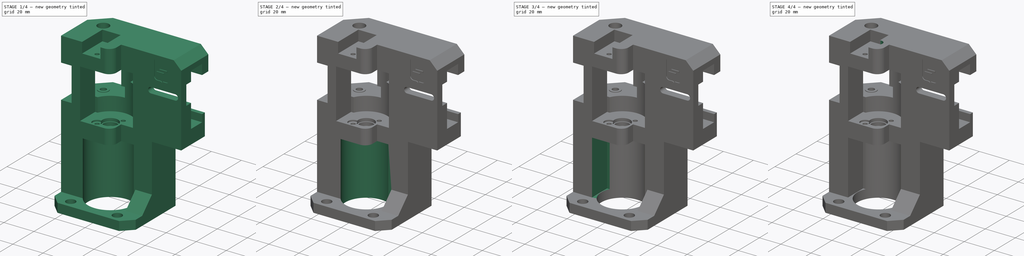
[diagram: build sequence overview — one tinted view per stage of 4, left to right]
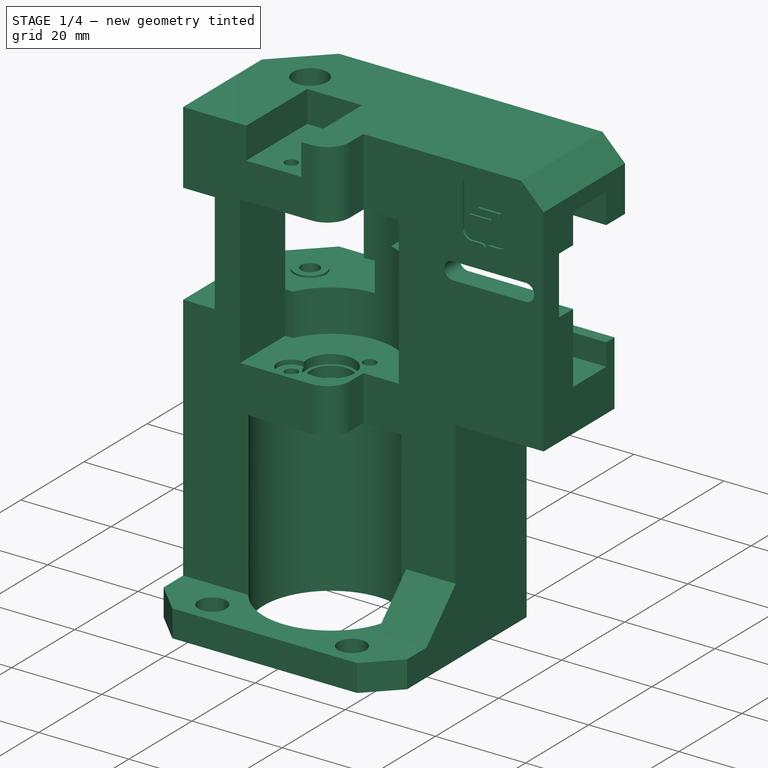
[diagram: stage 1 of 4 — iso view after this stage's code; geometry added in this stage tinted green]
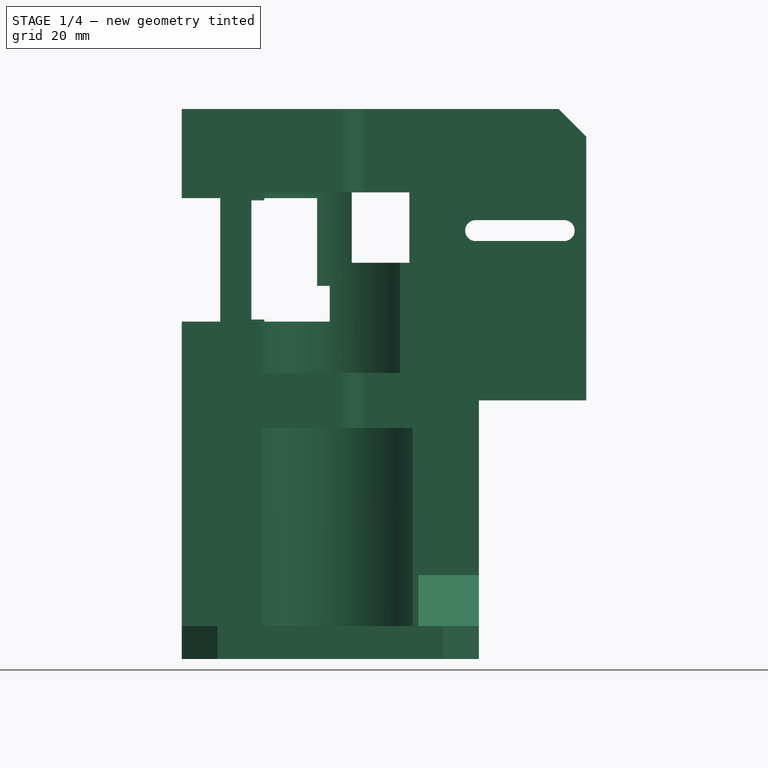
[diagram: stage 1 of 4 — front view after this stage's code; geometry added in this stage tinted green]
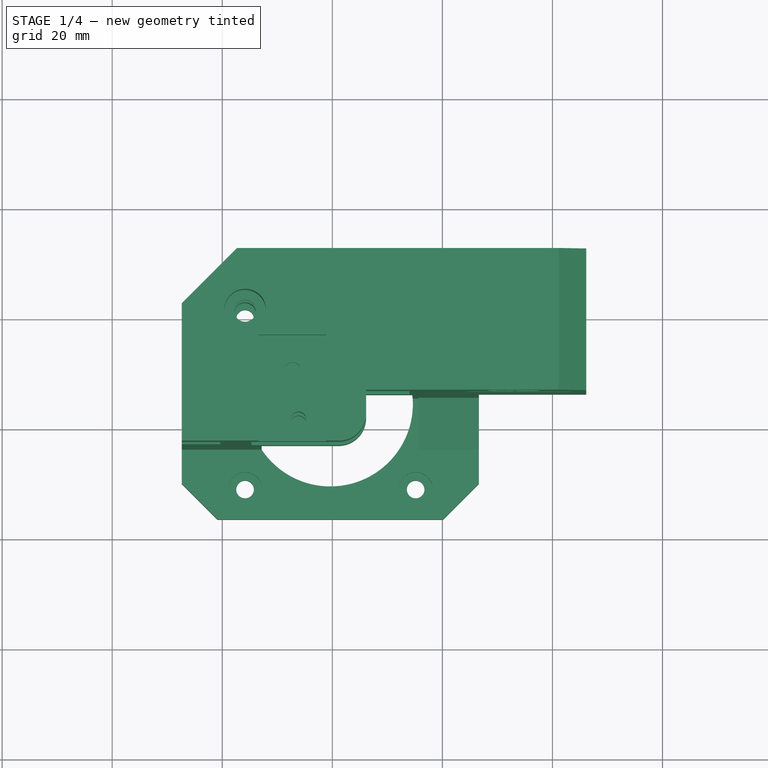
[diagram: stage 1 of 4 — top view after this stage's code; geometry added in this stage tinted green]
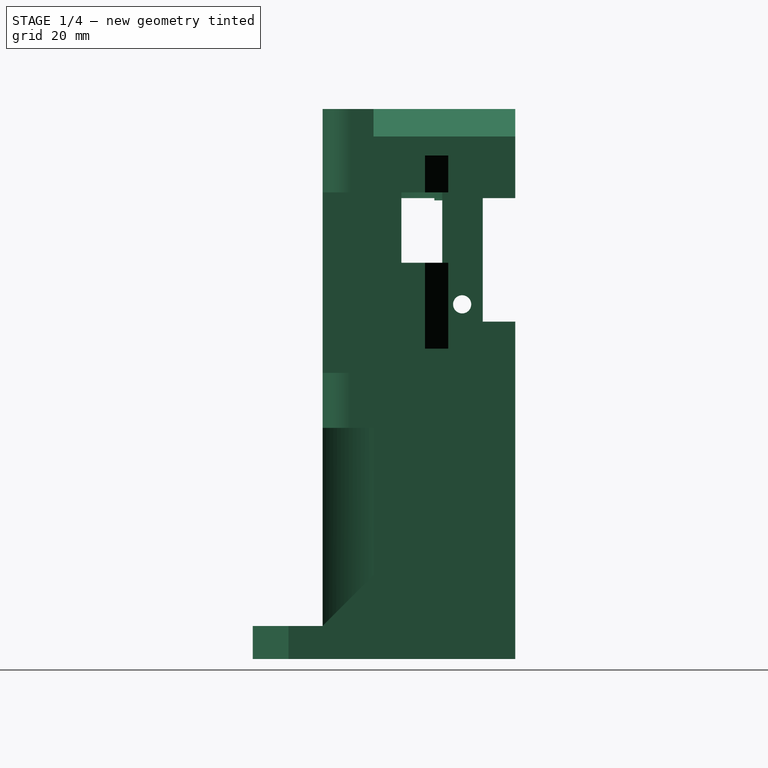
[diagram: stage 1 of 4 — right view after this stage's code; geometry added in this stage tinted green]
FCSTD DOCUMENT  (FreeCAD 1.0R38641 +468 (Git))
Label: k1_motor_mount_left
License: All rights reserved
LicenseURL: https://en.wikipedia.org/wiki/All_rights_reserved
objects: PartDesign::Pocket×6, Sketcher::SketchObject×5, PartDesign::Pad×2, Part::Feature×1, PartDesign::FeatureBase×1, PartDesign::Body×1, App::Part×1
note: 38 computed .brp shape members not serialized (recipe doc carries the construction recipe); baked Part::Feature solids carry a one-line shape summary decoded from their .brp

FEATURE [Part::Feature] Part__Feature  label="step"
  shape: bbox 73.5 x 47.7 x 99.95 mm, 153 faces (baked)
FEATURE [PartDesign::FeatureBase] BaseFeature
  BaseFeature = -> Part__Feature
  Suppressed = false
FEATURE [Sketcher::SketchObject] Sketch
  ArcFitTolerance = 1e-06
  AttachmentSupport = -> [BaseFeature]
  ExternalGeometry = -> [BaseFeature]
  FullyConstrained = true
  MakeInternals = false
  MapMode = 5
  Placement = pos=(2.999e-13,1.47e-14,-46) rot=(0,0,1;0rad)
  sketch-geometry (6):
    g0: LineSegment StartX=52.6406 StartY=970.078 StartZ=0 EndX=59.1406 EndY=963.578 EndZ=0
    g1: LineSegment StartX=106.641 StartY=970.078 StartZ=0 EndX=100.141 EndY=963.578 EndZ=0
    g2: LineSegment StartX=100.141 StartY=963.578 StartZ=0 EndX=106.641 EndY=963.578 EndZ=0
    g3: LineSegment StartX=106.641 StartY=963.578 StartZ=0 EndX=106.641 EndY=970.078 EndZ=0
    g4: LineSegment StartX=52.6406 StartY=970.078 StartZ=0 EndX=52.6406 EndY=963.578 EndZ=0
    g5: LineSegment StartX=52.6406 StartY=963.578 StartZ=0 EndX=59.1406 EndY=963.578 EndZ=0
  constraints (14):
    c: Coincident(g0,g-3)
    c: Coincident(g0,g-4)
    c: Coincident(g1,g-5)
    c: Coincident(g1,g-4)
    c: Coincident(g2,g1)
    c: Horizontal(g2)
    c: Coincident(g3,g2)
    c: Coincident(g3,g1)
    c: Vertical(g3)
    c: Coincident(g4,g0)
    c: Vertical(g4)
    c: Coincident(g5,g4)
    c: Coincident(g5,g0)
    c: Horizontal(g5)
FEATURE [PartDesign::Pocket] Pocket
  BaseFeature = -> BaseFeature
  Direction = (6.5e-15,0,-1)
  Length = 6
  Length2 = 5
  Profile = -> Sketch
  ReferenceAxis = -> Sketch [N_Axis]
  Refine = true
  Suppressed = false
  Type = 0
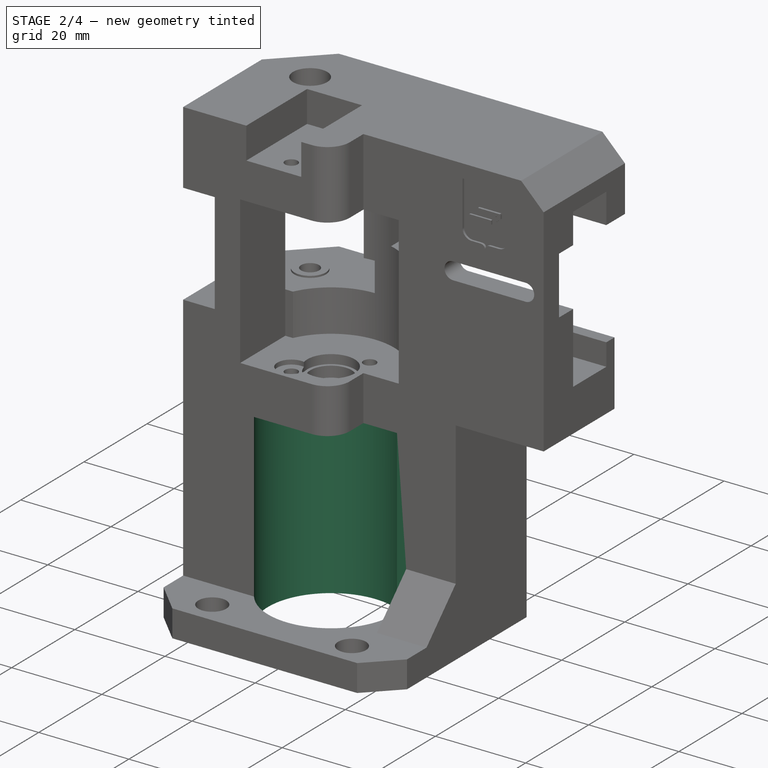
[diagram: stage 2 of 4 — iso view after this stage's code; geometry added in this stage tinted green]
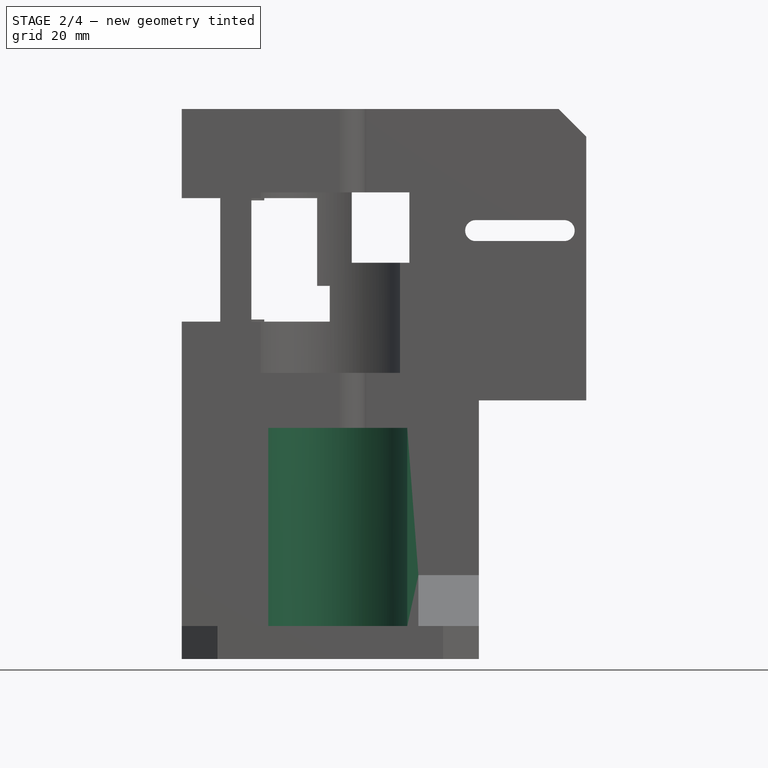
[diagram: stage 2 of 4 — front view after this stage's code; geometry added in this stage tinted green]
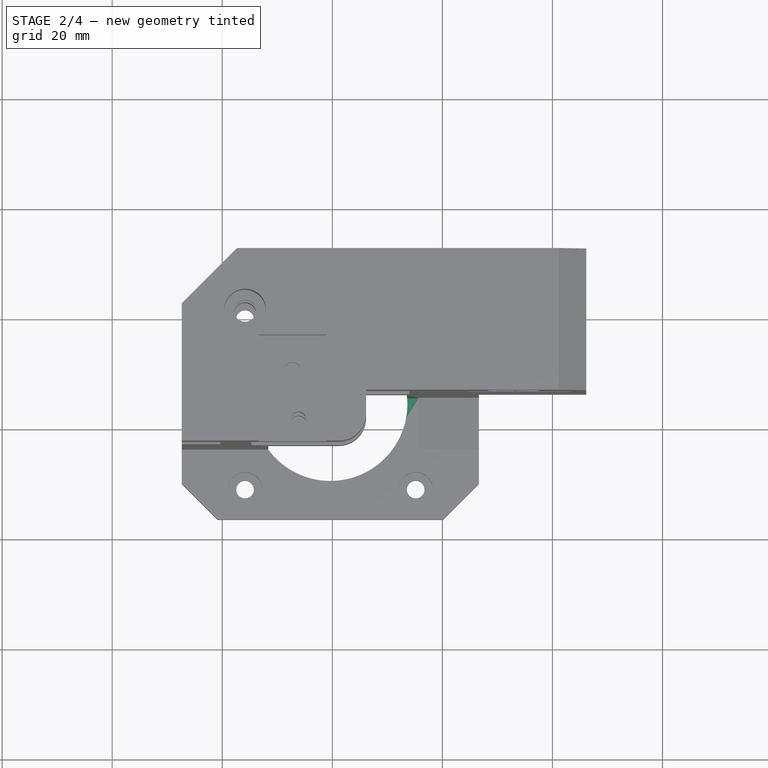
[diagram: stage 2 of 4 — top view after this stage's code; geometry added in this stage tinted green]
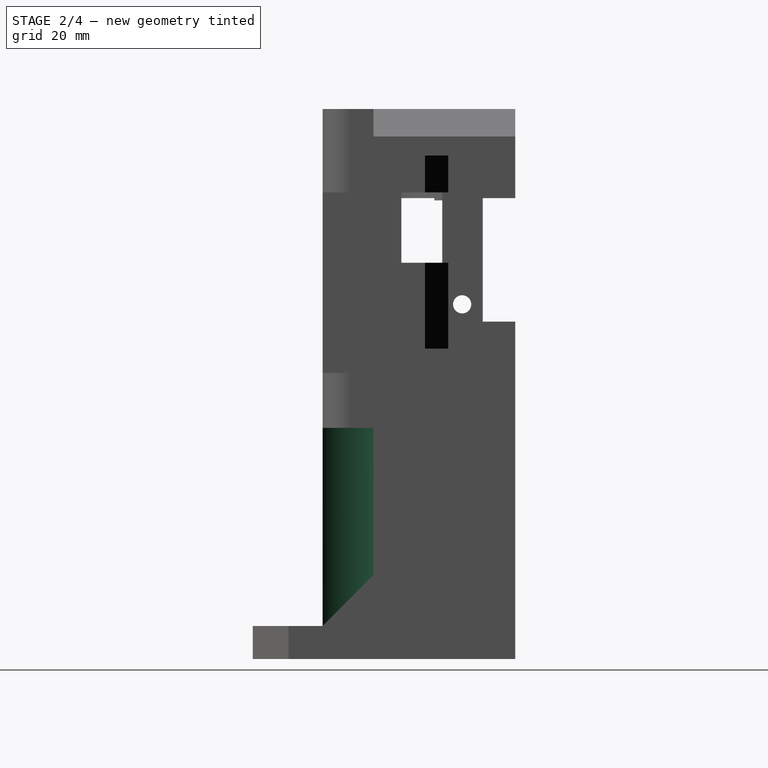
[diagram: stage 2 of 4 — right view after this stage's code; geometry added in this stage tinted green]
FEATURE [Sketcher::SketchObject] Sketch001
  ArcFitTolerance = 1e-06
  AttachmentSupport = -> [Pocket]
  ExternalGeometry = -> [Pocket]
  FullyConstrained = true
  MakeInternals = false
  MapMode = 5
  Placement = pos=(3.879e-13,-1.94e-13,-52) rot=(1,0,0;3.14159rad)
  sketch-geometry (2):
    g0: Circle CenterX=79.6406 CenterY=-984.578 CenterZ=0 NormalX=0 NormalY=0 NormalZ=1 AngleXU=0 Radius=14
    g1: Circle CenterX=79.6406 CenterY=-984.578 CenterZ=0 NormalX=0 NormalY=0 NormalZ=1 AngleXU=0 Radius=15
  constraints (4):
    c: Coincident(g0,g-3)
    c: Coincident(g1,g0)
    c: Tangent(g1,g-3)
    c: Diameter(g0) = 28
FEATURE [PartDesign::Pad] Pad
  BaseFeature = -> Pocket
  Direction = (7.5e-15,-3.7e-15,-1)
  Length = 10
  Length2 = 10
  Profile = -> Sketch001
  ReferenceAxis = -> Sketch001 [N_Axis]
  Refine = true
  Suppressed = false
  Type = 3
  UpToFace = -> Pocket [Face20]
FEATURE [PartDesign::Pocket] Pocket001
  BaseFeature = -> Pad
  Direction = (7e-15,-2.3e-15,-1)
  Length = 0
  Length2 = 5
  Profile = -> Pad [Face20]
  Refine = true
  Suppressed = false
  Type = 3
  UpToFace = -> Pad [Face18]
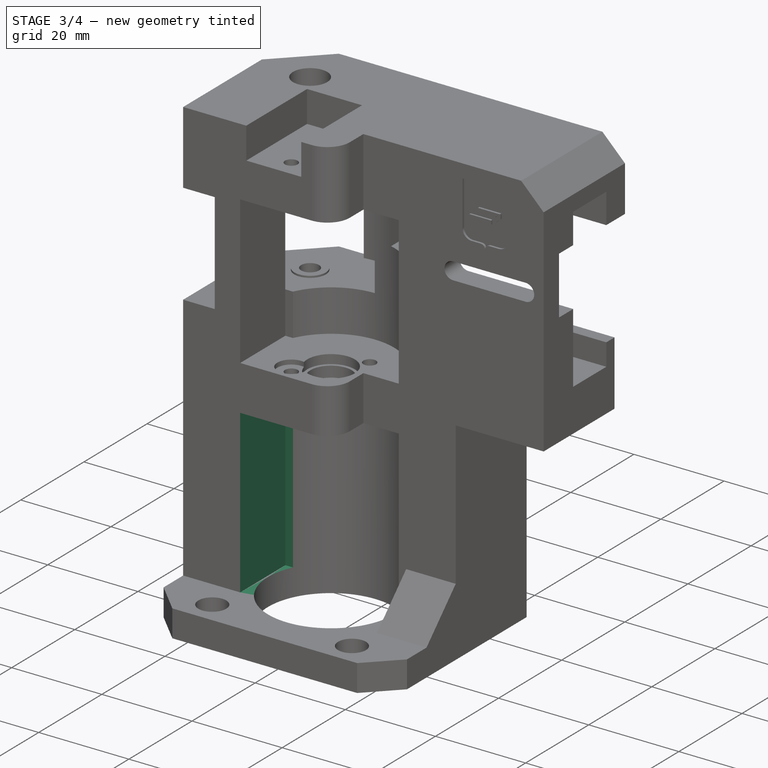
[diagram: stage 3 of 4 — iso view after this stage's code; geometry added in this stage tinted green]
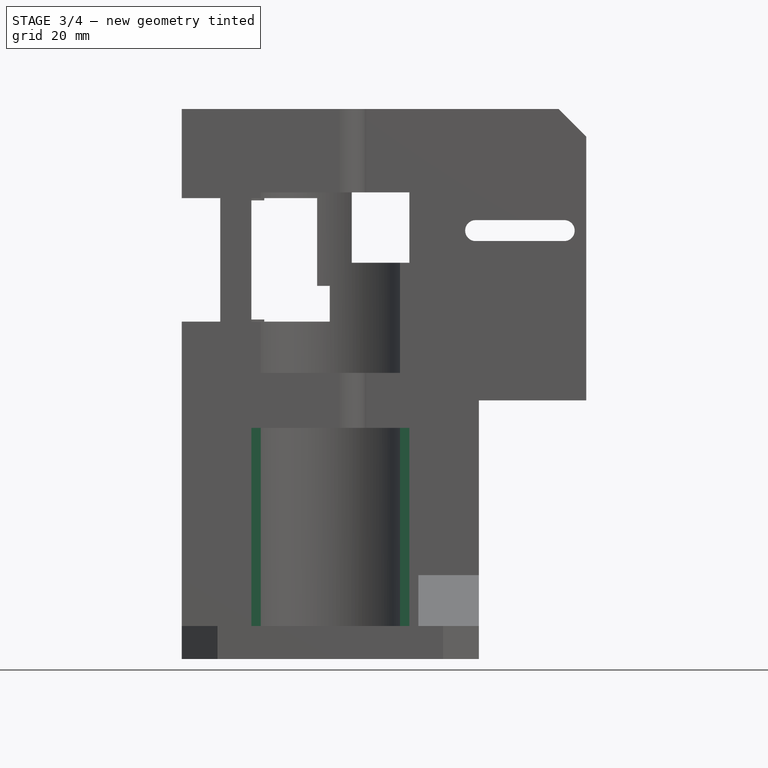
[diagram: stage 3 of 4 — front view after this stage's code; geometry added in this stage tinted green]
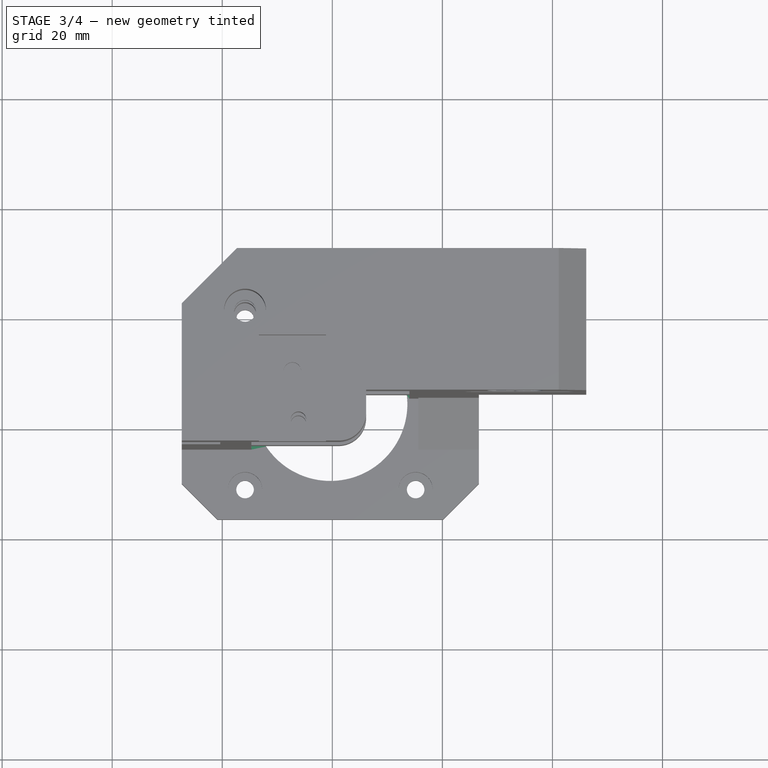
[diagram: stage 3 of 4 — top view after this stage's code; geometry added in this stage tinted green]
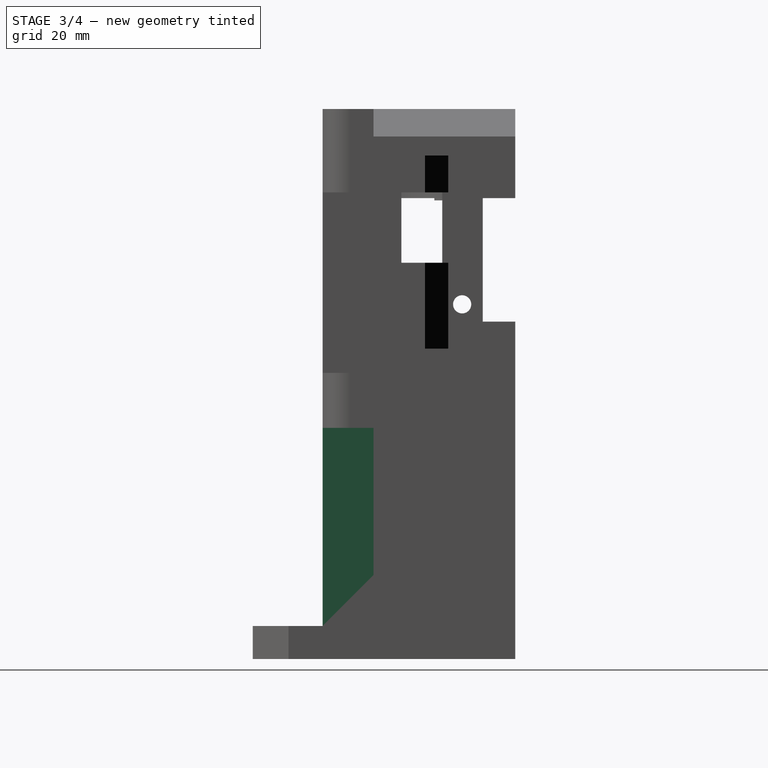
[diagram: stage 3 of 4 — right view after this stage's code; geometry added in this stage tinted green]
FEATURE [Sketcher::SketchObject] Sketch002
  ArcFitTolerance = 1e-06
  AttachmentSupport = -> [Pocket001]
  ExternalGeometry = -> [Pocket001]
  FullyConstrained = true
  MakeInternals = false
  MapMode = 5
  Placement = pos=(-7.91e-14,1.0056e-12,-46) rot=(0,0,1;0rad)
  sketch-geometry (4):
    g0: LineSegment StartX=65.6406 StartY=976.278 StartZ=0 EndX=79.6406 EndY=976.278 EndZ=0
    g1: LineSegment StartX=79.6406 StartY=976.278 StartZ=0 EndX=79.6406 EndY=984.578 EndZ=0
    g2: LineSegment StartX=79.6406 StartY=984.578 StartZ=0 EndX=65.6406 EndY=984.578 EndZ=0
    g3: LineSegment StartX=65.6406 StartY=984.578 StartZ=0 EndX=65.6406 EndY=976.278 EndZ=0
  constraints (11):
    c: Coincident(g0,g1)
    c: Coincident(g1,g2)
    c: Coincident(g2,g3)
    c: Coincident(g3,g0)
    c: Horizontal(g0)
    c: Horizontal(g2)
    c: Vertical(g1)
    c: Vertical(g3)
    c: PointOnObject(g0,g-3)
    c: Coincident(g1,g-4)
    c: Tangent(g3,g-4)
FEATURE [PartDesign::Pocket] Pocket002
  BaseFeature = -> Pocket001
  Direction = (-1.7e-15,2.19e-14,-1)
  Length = 0
  Length2 = 5
  Profile = -> Sketch002
  ReferenceAxis = -> Sketch002 [N_Axis]
  Refine = true
  Suppressed = false
  Type = 3
  UpToFace = -> Pocket001 [Face9]
FEATURE [Sketcher::SketchObject] Sketch003
  ArcFitTolerance = 1e-06
  AttachmentSupport = -> [Pocket002]
  ExternalGeometry = -> [Pocket002]
  FullyConstrained = true
  MakeInternals = false
  MapMode = 5
  Placement = pos=(2.38983e-10,976.278,-3.70049e-10) rot=(1,0,0;1.5708rad)
  sketch-geometry (4):
    g0: LineSegment StartX=65.2906 StartY=-46 StartZ=0 EndX=75.2906 EndY=-46 EndZ=0
    g1: LineSegment StartX=75.2906 StartY=-46 StartZ=0 EndX=75.2906 EndY=-10 EndZ=0
    g2: LineSegment StartX=75.2906 StartY=-10 StartZ=0 EndX=65.2906 EndY=-10 EndZ=0
    g3: LineSegment StartX=65.2906 StartY=-10 StartZ=0 EndX=65.2906 EndY=-46 EndZ=0
  constraints (12):
    c: Coincident(g0,g1)
    c: Coincident(g1,g2)
    c: Coincident(g2,g3)
    c: Coincident(g3,g0)
    c: Horizontal(g0)
    c: Horizontal(g2)
    c: Vertical(g1)
    c: Vertical(g3)
    c: PointOnObject(g0,g-4)
    c: PointOnObject(g1,g-3)
    c: PointOnObject(g2,g-5)
    c: Distance(g2,g2) = 10
FEATURE [PartDesign::Pocket] Pocket003
  BaseFeature = -> Pocket002
  Direction = (2.448e-13,1,-3.793e-13)
  Length = 0
  Length2 = 5
  Profile = -> Sketch003
  ReferenceAxis = -> Sketch003 [N_Axis]
  Refine = true
  Suppressed = false
  Type = 3
  UpToFace = -> Pocket002 [Face81]
FEATURE [Sketcher::SketchObject] Sketch004
  ArcFitTolerance = 1e-06
  AttachmentSupport = -> [Pocket003]
  ExternalGeometry = -> [Pocket003]
  FullyConstrained = true
  MakeInternals = false
  MapMode = 5
  Placement = pos=(-3.40027e-10,985.528,-2.29855e-10) rot=(1,0,0;1.5708rad)
  sketch-geometry (4):
    g0: LineSegment StartX=86.1406 StartY=-10 StartZ=0 EndX=86.1406 EndY=-46 EndZ=0
    g1: LineSegment StartX=86.1406 StartY=-46 StartZ=0 EndX=93.9906 EndY=-46 EndZ=0
    g2: LineSegment StartX=93.9906 StartY=-46 StartZ=0 EndX=93.9906 EndY=-10 EndZ=0
    g3: LineSegment StartX=93.9906 StartY=-10 StartZ=0 EndX=86.1406 EndY=-10 EndZ=0
  constraints (11):
    c: Coincident(g0,g1)
    c: Coincident(g1,g2)
    c: Coincident(g2,g3)
    c: Coincident(g3,g0)
    c: Vertical(g0)
    c: Vertical(g2)
    c: Horizontal(g1)
    c: Horizontal(g3)
    c: Coincident(g0,g-4)
    c: PointOnObject(g1,g-5)
    c: PointOnObject(g2,g-6)
FEATURE [PartDesign::Pocket] Pocket004
  BaseFeature = -> Pocket003
  Direction = (-3.45e-13,1,-2.331e-13)
  Length = 0
  Length2 = 5
  Profile = -> Sketch004
  ReferenceAxis = -> Sketch004 [N_Axis]
  Refine = true
  Suppressed = false
  Type = 3
  UpToFace = -> Pocket003 [Face53]
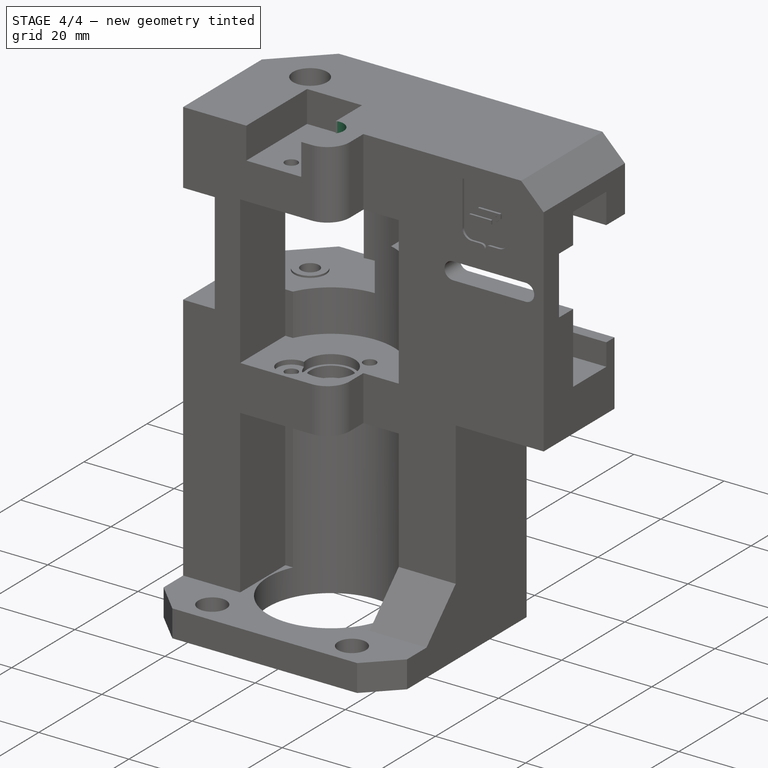
[diagram: stage 4 of 4 — iso view after this stage's code; geometry added in this stage tinted green]
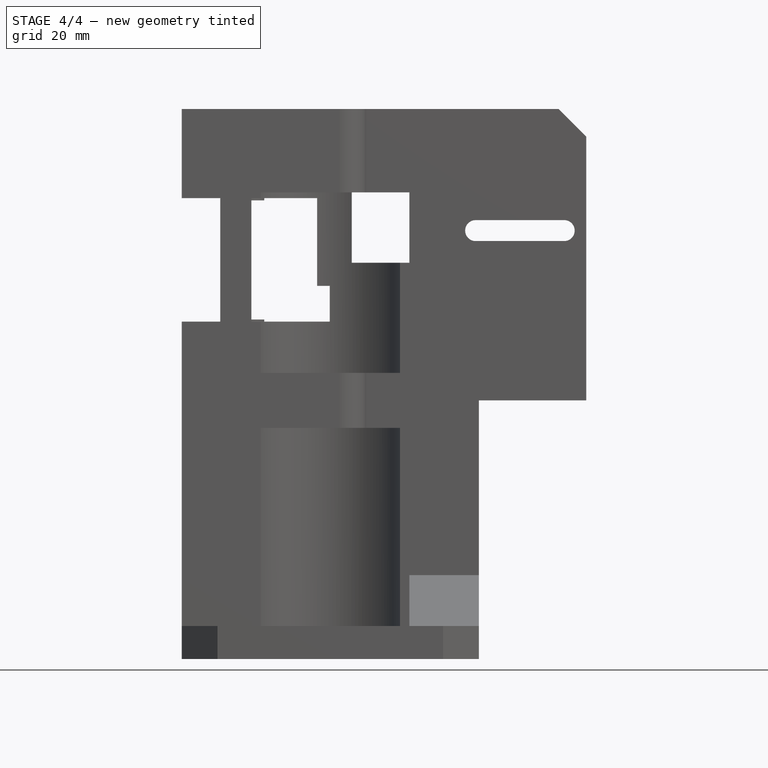
[diagram: stage 4 of 4 — front view after this stage's code; geometry added in this stage tinted green]
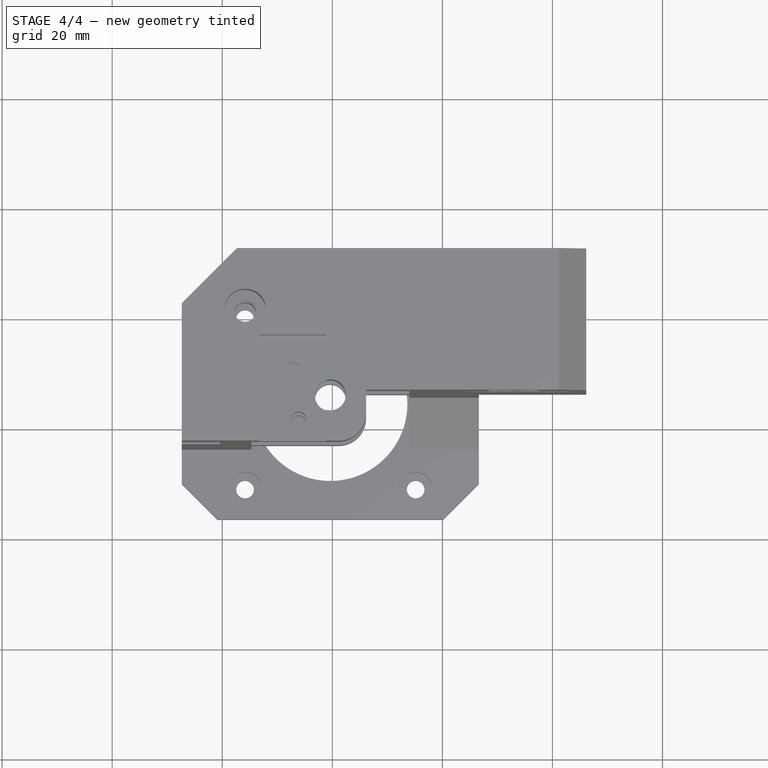
[diagram: stage 4 of 4 — top view after this stage's code; geometry added in this stage tinted green]
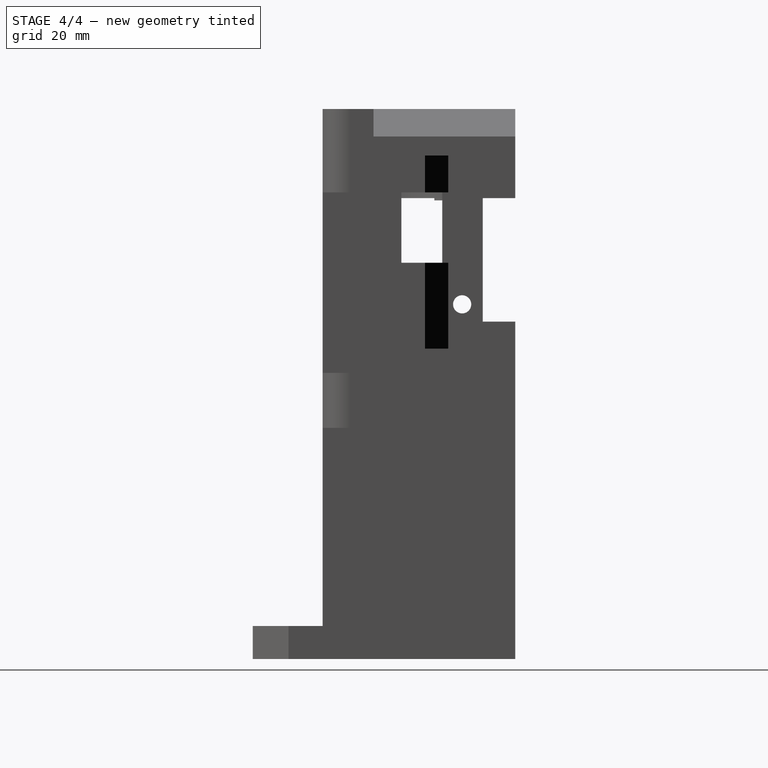
[diagram: stage 4 of 4 — right view after this stage's code; geometry added in this stage tinted green]
FEATURE [PartDesign::Pad] Pad001
  BaseFeature = -> Pocket004
  Direction = (-1,3.1e-15,-3.1e-15)
  Length = 10
  Length2 = 10
  Profile = -> Pocket004 [Face11]
  Refine = true
  Suppressed = false
  Type = 3
  UpToFace = -> Pocket004 [Face45]
FEATURE [PartDesign::Pocket] Pocket005
  BaseFeature = -> Pad001
  Direction = (2e-16,4.8e-15,1)
  Length = 5
  Length2 = 5
  Profile = -> Pad001 [Face154]
  Refine = true
  Suppressed = false
  Type = 1
FEATURE [PartDesign::Body] Body  label="k1_motor_mount_left"
  AllowCompound = false
  BaseFeature = -> Part__Feature
  Group = -> [BaseFeature,Sketch,Pocket,Sketch001,Pad,Pocket001,Sketch002,Pocket002,Sketch003,Pocket003,Sketch004,Pocket004,Pad001,Pocket005]
  Origin = -> Origin001
  Tip = -> Pocket005
FEATURE [App::Part] Part  label="k1_motor_mount_left_part"
  Group = -> [Part__Feature,Body]
  Origin = -> Origin
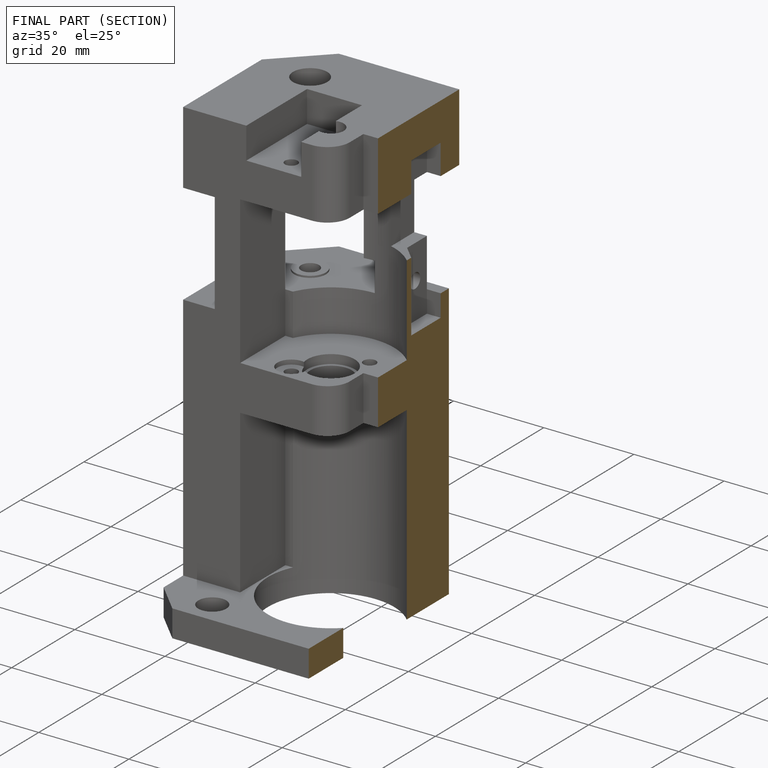
[diagram: finished part — half-section view (interior)]
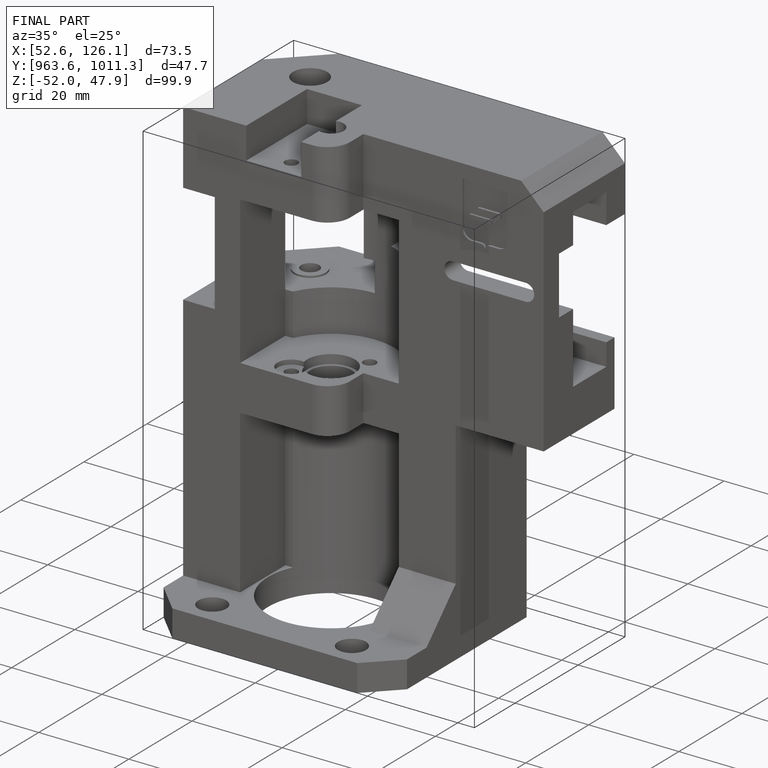
[diagram: finished part — iso view with bounding-box wireframe]
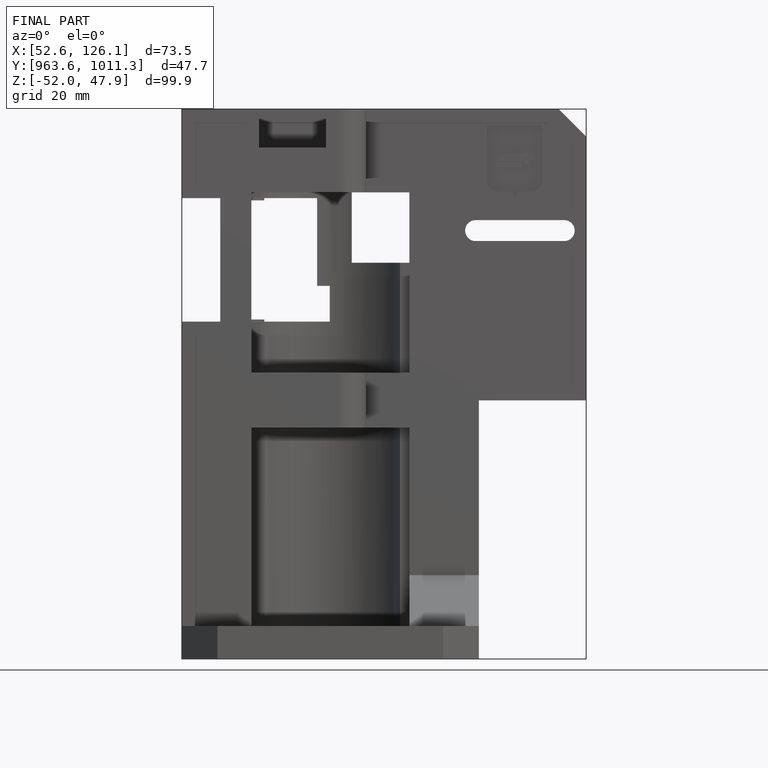
[diagram: finished part — front view with bounding-box wireframe]
